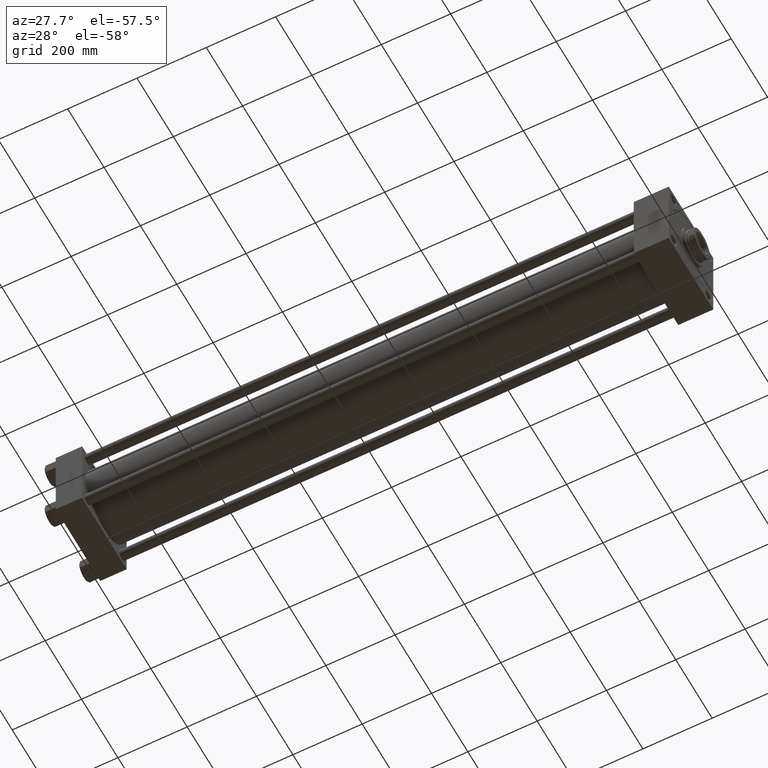
[diagram: clean part render]
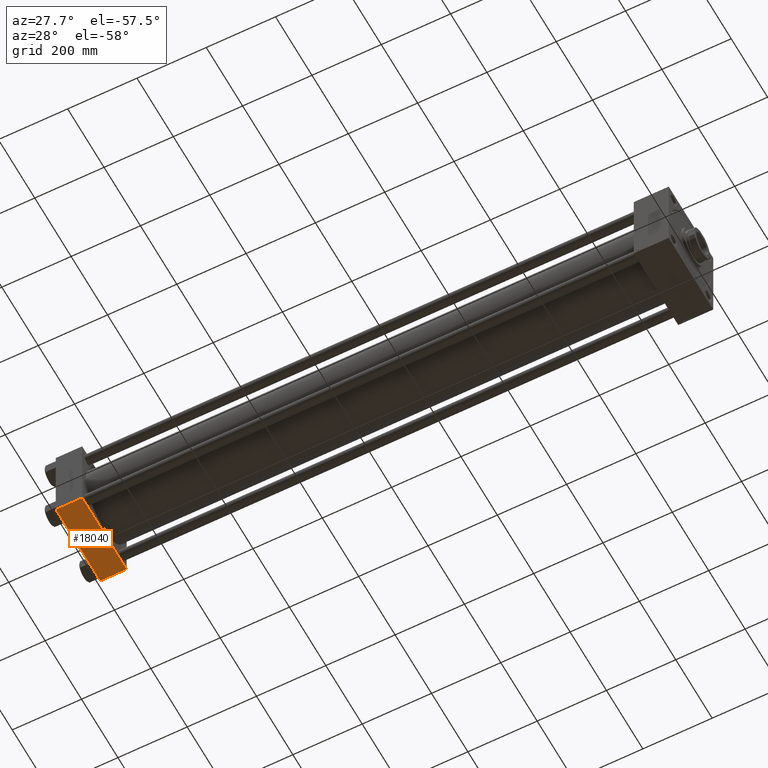
[diagram: same view with one face highlighted and labeled with its STEP entity id]
A machine part, auxiliary view. The second image highlights one B-rep face of the part: STEP entity #18040.
In plain terms, the highlighted planar face has unit normal (0, 0, -1).
Its self-contained STEP definition (entity closure, byte-faithful):
#434 = DIRECTION ( 'NONE',  ( 0.000000000000000000, -1.000000000000000000, -2.265761274745216987E-16 ) ) ;
#697 = LINE ( 'NONE', #43288, #26782 ) ;
#2434 = AXIS2_PLACEMENT_3D ( 'NONE', #43176, #23414, #41479 ) ;
#4321 = ORIENTED_EDGE ( 'NONE', *, *, #39233, .T. ) ;
#5377 = DIRECTION ( 'NONE',  ( -1.000000000000000000, 0.000000000000000000, 0.000000000000000000 ) ) ;
#5917 = VERTEX_POINT ( 'NONE', #31470 ) ;
#8571 = VERTEX_POINT ( 'NONE', #38335 ) ;
#10115 = EDGE_CURVE ( 'NONE', #27361, #8571, #16803, .T. ) ;
#11368 = PLANE ( 'NONE',  #2434 ) ;
#11652 = EDGE_CURVE ( 'NONE', #16220, #5917, #697, .T. ) ;
#12830 = LINE ( 'NONE', #19997, #43839 ) ;
#14899 = CARTESIAN_POINT ( 'NONE',  ( 76.00000000000000000, 122.0000000000000568, -122.5000000000000000 ) ) ;
#16220 = VERTEX_POINT ( 'NONE', #37596 ) ;
#16803 = LINE ( 'NONE', #21152, #19364 ) ;
#18040 = ADVANCED_FACE ( 'NONE', ( #27519 ), #11368, .T. ) ;
#19364 = VECTOR ( 'NONE', #36562, 1000.000000000000000 ) ;
#19997 = CARTESIAN_POINT ( 'NONE',  ( 0.000000000000000000, -122.0000000000000000, -122.5000000000000568 ) ) ;
#21152 = CARTESIAN_POINT ( 'NONE',  ( 0.000000000000000000, 122.5000000000000568, -122.5000000000000000 ) ) ;
#21726 = EDGE_CURVE ( 'NONE', #27361, #16220, #42846, .T. ) ;
#23414 = DIRECTION ( 'NONE',  ( 0.000000000000000000, 2.265761274745216987E-16, -1.000000000000000000 ) ) ;
#25660 = CARTESIAN_POINT ( 'NONE',  ( 0.000000000000000000, 122.0000000000000568, -122.5000000000000000 ) ) ;
#26312 = VECTOR ( 'NONE', #49787, 1000.000000000000000 ) ;
#26782 = VECTOR ( 'NONE', #434, 1000.000000000000000 ) ;
#27361 = VERTEX_POINT ( 'NONE', #25660 ) ;
#27519 = FACE_OUTER_BOUND ( 'NONE', #34889, .T. ) ;
#31470 = CARTESIAN_POINT ( 'NONE',  ( 76.00000000000000000, -122.0000000000000000, -122.5000000000000568 ) ) ;
#34889 = EDGE_LOOP ( 'NONE', ( #43949, #45368, #39314, #4321 ) ) ;
#36562 = DIRECTION ( 'NONE',  ( 0.000000000000000000, -1.000000000000000000, -2.265761274745216987E-16 ) ) ;
#37596 = CARTESIAN_POINT ( 'NONE',  ( 76.00000000000000000, 122.0000000000000568, -122.5000000000000000 ) ) ;
#38335 = CARTESIAN_POINT ( 'NONE',  ( 0.000000000000000000, -122.0000000000000000, -122.5000000000000568 ) ) ;
#39233 = EDGE_CURVE ( 'NONE', #5917, #8571, #12830, .T. ) ;
#39314 = ORIENTED_EDGE ( 'NONE', *, *, #11652, .T. ) ;
#41479 = DIRECTION ( 'NONE',  ( 0.000000000000000000, 1.000000000000000000, 2.265761274745216987E-16 ) ) ;
#42846 = LINE ( 'NONE', #14899, #26312 ) ;
#43176 = CARTESIAN_POINT ( 'NONE',  ( 76.00000000000000000, 122.5000000000000568, -122.5000000000000000 ) ) ;
#43288 = CARTESIAN_POINT ( 'NONE',  ( 76.00000000000000000, 122.5000000000000568, -122.5000000000000000 ) ) ;
#43839 = VECTOR ( 'NONE', #5377, 1000.000000000000000 ) ;
#43949 = ORIENTED_EDGE ( 'NONE', *, *, #10115, .F. ) ;
#45368 = ORIENTED_EDGE ( 'NONE', *, *, #21726, .T. ) ;
#49787 = DIRECTION ( 'NONE',  ( 1.000000000000000000, 0.000000000000000000, 0.000000000000000000 ) ) ;